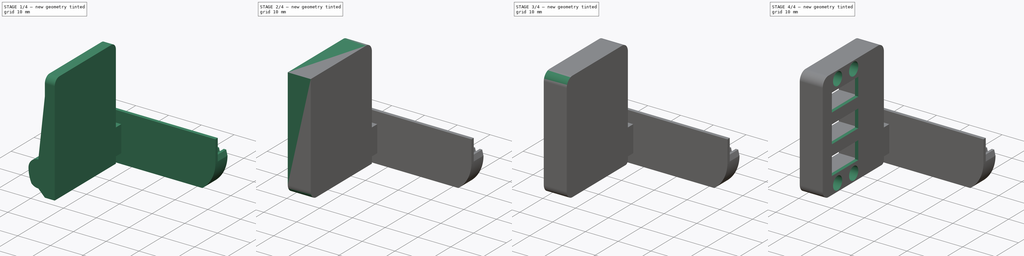
[diagram: build sequence overview — one tinted view per stage of 4, left to right]
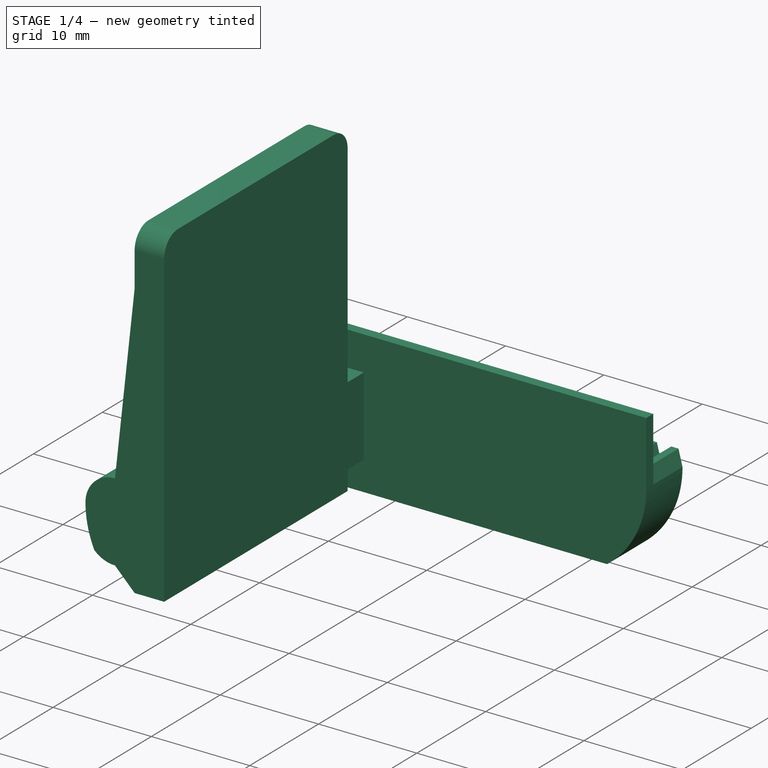
[diagram: stage 1 of 4 — iso view after this stage's code; geometry added in this stage tinted green]
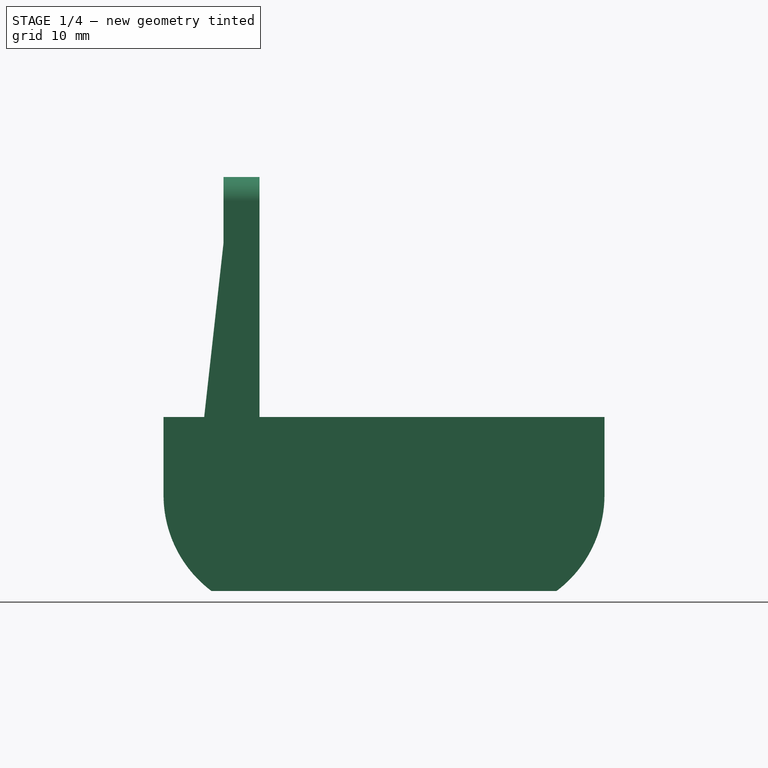
[diagram: stage 1 of 4 — front view after this stage's code; geometry added in this stage tinted green]
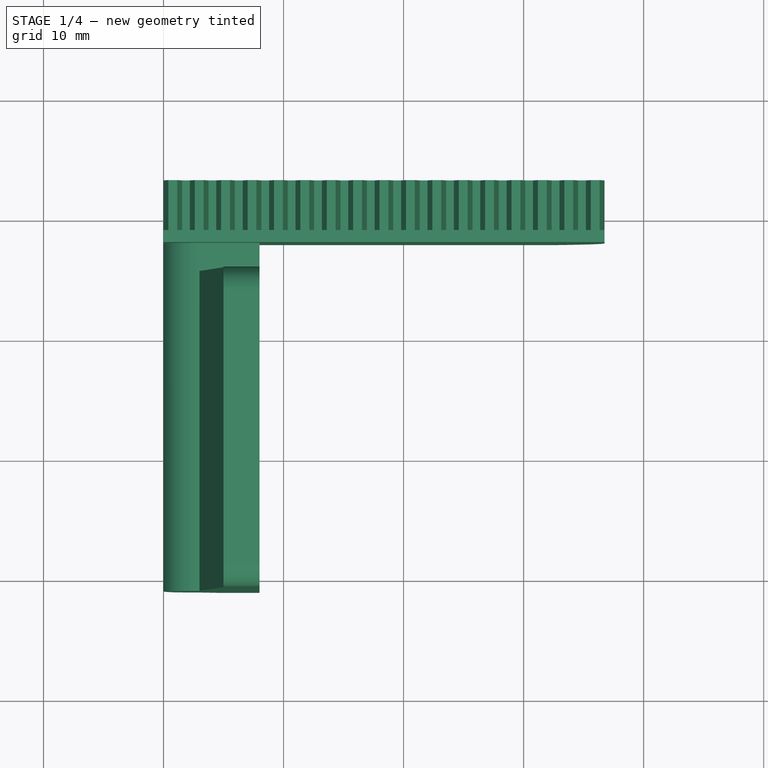
[diagram: stage 1 of 4 — top view after this stage's code; geometry added in this stage tinted green]
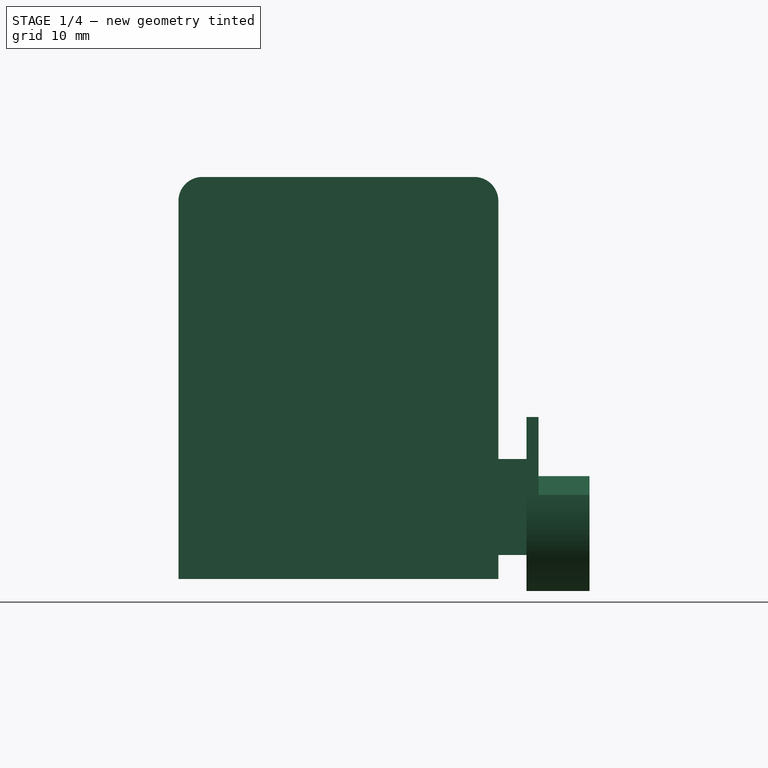
[diagram: stage 1 of 4 — right view after this stage's code; geometry added in this stage tinted green]
FCSTD DOCUMENT  (FreeCAD 0.21R33668 +26 (Git))
Label: Gripper_Right_1
License: All rights reserved
LicenseURL: https://en.wikipedia.org/wiki/All_rights_reserved
objects: Sketcher::SketchObject×9, PartDesign::Pocket×7, PartDesign::Fillet×4, PartDesign::Pad×2, Part::Feature×1, PartDesign::FeatureBase×1, PartDesign::Body×1
note: 38 computed .brp shape members not serialized (recipe doc carries the construction recipe); baked Part::Feature solids carry a one-line shape summary decoded from their .brp

FEATURE [Part::Feature] Part__Feature  label="gripper_finger v1"
  shape: bbox 36.74 x 44.25 x 34.5 mm, 95 faces (baked)
FEATURE [PartDesign::FeatureBase] BaseFeature
  BaseFeature = -> Part__Feature
FEATURE [Sketcher::SketchObject] Sketch
  ExternalGeometry = -> [BaseFeature]
  FullyConstrained = true
  MapMode = 5
  Placement = pos=(0,-31,0) rot=(0,0.707107,0.707107;3.14159rad)
  Support = -> [BaseFeature]
  sketch-geometry (9):
    g0: LineSegment StartX=-8 StartY=11 StartZ=0 EndX=-3 EndY=11 EndZ=0
    g1: LineSegment StartX=-3 StartY=11 StartZ=0 EndX=-5 EndY=9 EndZ=0
    g2: LineSegment StartX=-5 StartY=9 StartZ=0 EndX=-8 EndY=9 EndZ=0
    g3: LineSegment StartX=-8 StartY=9 StartZ=0 EndX=-8 EndY=11 EndZ=0
    g4: LineSegment StartX=-8 StartY=42.5 StartZ=0 EndX=-5 EndY=42.5 EndZ=0
    g5: LineSegment StartX=-5 StartY=42.5 StartZ=0 EndX=-5 EndY=37 EndZ=0
    g6: LineSegment StartX=-5 StartY=37 StartZ=0 EndX=-3 EndY=19 EndZ=0
    g7: LineSegment StartX=-3 StartY=19 StartZ=0 EndX=-8 EndY=19 EndZ=0
    g8: LineSegment StartX=-8 StartY=19 StartZ=0 EndX=-8 EndY=42.5 EndZ=0
  constraints (18):
    c: Coincident(g-10,g0)
    c: Coincident(g0,g-10)
    c: Coincident(g0,g1)
    c: Coincident(g1,g-8)
    c: Coincident(g1,g2)
    c: Coincident(g2,g-8)
    c: Coincident(g2,g3)
    c: Coincident(g3,g0)
    c: Coincident(g-5,g4)
    c: Coincident(g4,g-4)
    c: Coincident(g4,g5)
    c: Coincident(g5,g-6)
    c: Coincident(g5,g6)
    c: Coincident(g6,g-6)
    c: Coincident(g6,g7)
    c: Coincident(g7,g-5)
    c: Coincident(g7,g8)
    c: Coincident(g8,g4)
FEATURE [PartDesign::Pad] Pad
  BaseFeature = -> BaseFeature
  Direction = (0,1,-2e-16)
  Length = 6.65
  Length2 = 10
  Profile = -> Sketch
  ReferenceAxis = -> Sketch [N_Axis]
  Type = 0
FEATURE [Sketcher::SketchObject] Sketch001
  ExternalGeometry = -> [Pad]
  FullyConstrained = false
  MapMode = 5
  Placement = pos=(8,0,0) rot=(0.57735,0.57735,0.57735;2.0944rad)
  Support = -> [Pad]
  sketch-geometry (4):
    g0: LineSegment StartX=-66.622 StartY=49.9911 StartZ=0 EndX=-51 EndY=49.9911 EndZ=0
    g1: LineSegment StartX=-51 StartY=49.9911 StartZ=0 EndX=-51 EndY=-4.70085 EndZ=0
    g2: LineSegment StartX=-51 StartY=-4.70085 StartZ=0 EndX=-66.622 EndY=-4.70085 EndZ=0
    g3: LineSegment StartX=-66.622 StartY=-4.70085 StartZ=0 EndX=-66.622 EndY=49.9911 EndZ=0
  constraints (9):
    c: Coincident(g0,g1)
    c: Coincident(g1,g2)
    c: Coincident(g2,g3)
    c: Coincident(g3,g0)
    c: Horizontal(g0)
    c: Horizontal(g2)
    c: Vertical(g1)
    c: Vertical(g3)
    c: DistanceX(g-3,g0) = 10
FEATURE [PartDesign::Pocket] Pocket
  BaseFeature = -> Pad
  Direction = (-1,0,0)
  Length = 5
  Length2 = 5
  Profile = -> Sketch001
  ReferenceAxis = -> Sketch001 [N_Axis]
  Type = 1
FEATURE [PartDesign::Fillet] Fillet
  Base = -> Pocket [Edge142,Edge20]
  BaseFeature = -> Pocket
  Radius = 2
  SupportTransform = false
  UseAllEdges = false
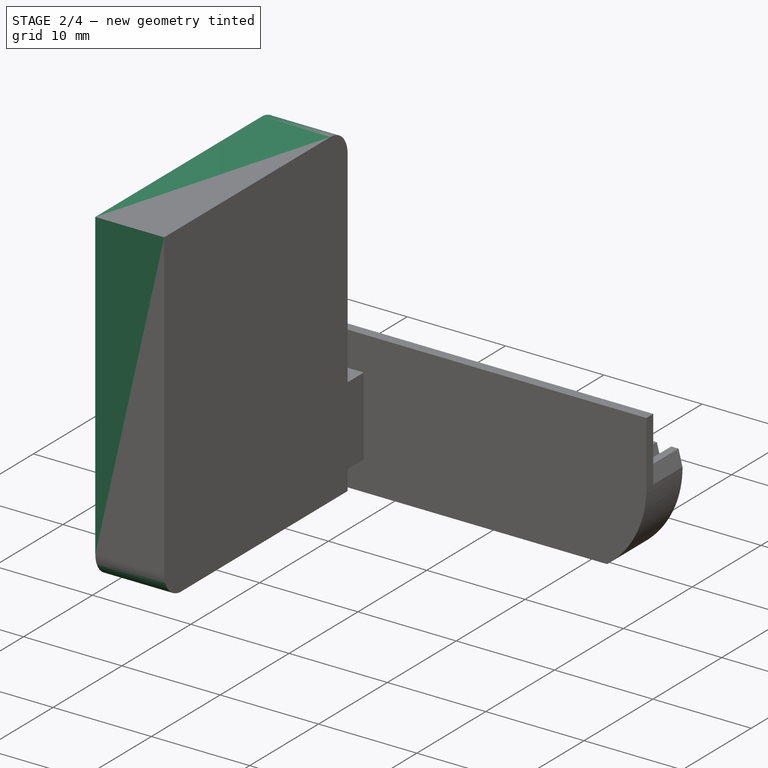
[diagram: stage 2 of 4 — iso view after this stage's code; geometry added in this stage tinted green]
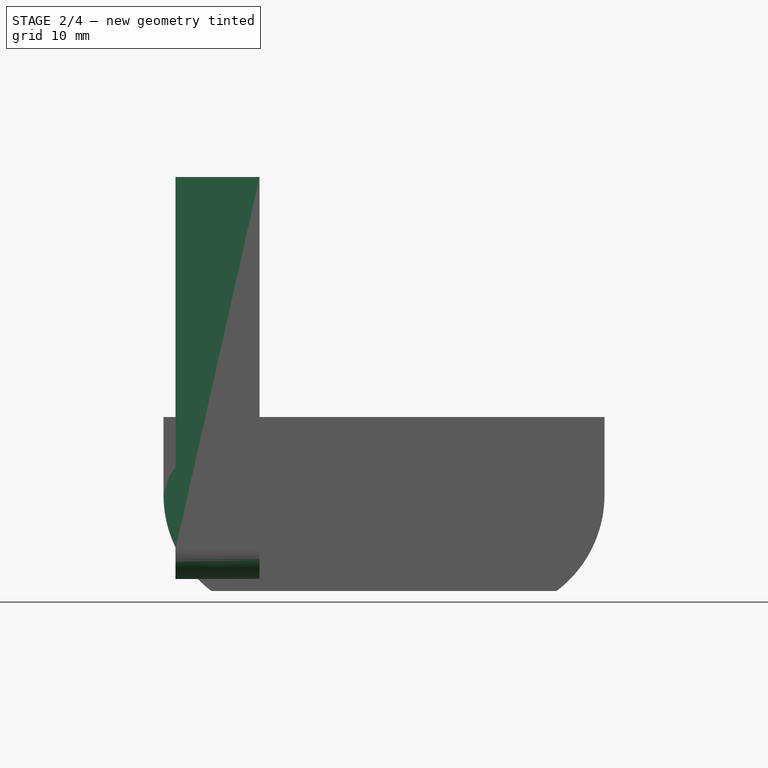
[diagram: stage 2 of 4 — front view after this stage's code; geometry added in this stage tinted green]
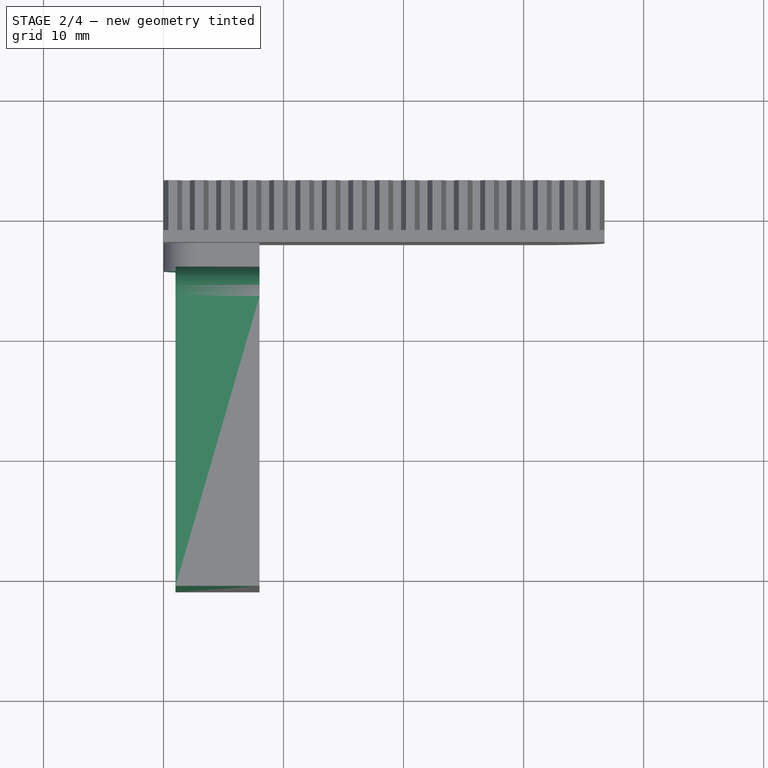
[diagram: stage 2 of 4 — top view after this stage's code; geometry added in this stage tinted green]
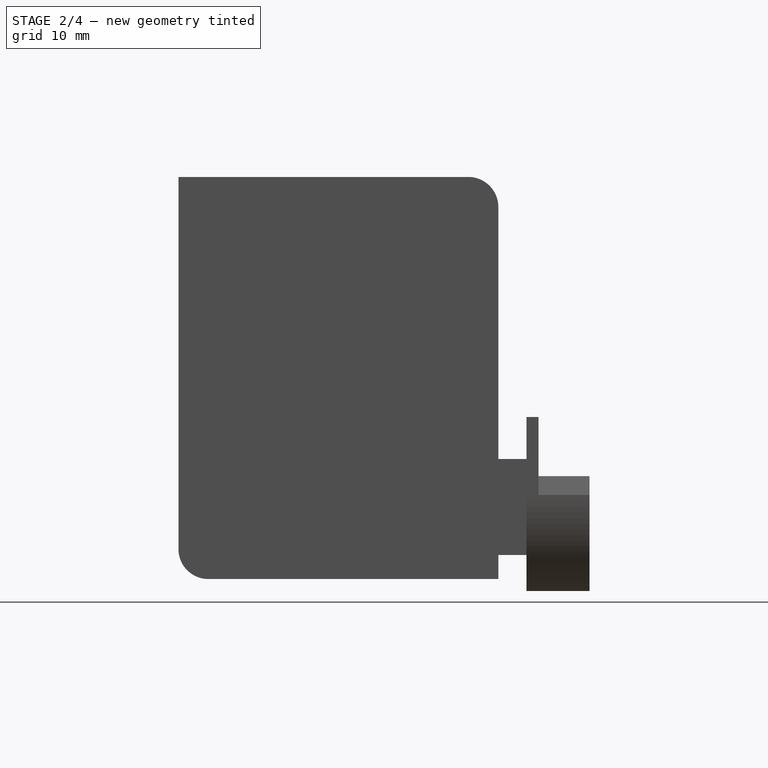
[diagram: stage 2 of 4 — right view after this stage's code; geometry added in this stage tinted green]
FEATURE [Sketcher::SketchObject] Sketch002
  ExternalGeometry = -> [Fillet]
  FullyConstrained = false
  MapMode = 5
  Placement = pos=(8,0,0) rot=(0.57735,0.57735,0.57735;2.0944rad)
  Support = -> [Fillet]
  sketch-geometry (4):
    g0: LineSegment StartX=-60.4604 StartY=48.2021 StartZ=0 EndX=-24.35 EndY=48.2021 EndZ=0
    g1: LineSegment StartX=-24.35 StartY=48.2021 StartZ=0 EndX=-24.35 EndY=1.81689 EndZ=0
    g2: LineSegment StartX=-24.35 StartY=1.81689 StartZ=0 EndX=-60.4604 EndY=1.81689 EndZ=0
    g3: LineSegment StartX=-60.4604 StartY=1.81689 StartZ=0 EndX=-60.4604 EndY=48.2021 EndZ=0
  constraints (12):
    c: DistanceY(g-3,g-4) = 23.5
    c: DistanceY(g-5,g-6) = 2
    c: DistanceX(g-7,g-3) = 26.65
    c: Coincident(g0,g1)
    c: Coincident(g1,g2)
    c: Coincident(g2,g3)
    c: Coincident(g3,g0)
    c: Horizontal(g0)
    c: Horizontal(g2)
    c: Vertical(g1)
    c: Vertical(g3)
    c: Vertical(g0,g-3)
FEATURE [PartDesign::Pocket] Pocket001
  BaseFeature = -> Fillet
  Direction = (-1,0,0)
  Length = 5
  Length2 = 5
  Profile = -> Sketch002
  ReferenceAxis = -> Sketch002 [N_Axis]
  Type = 1
FEATURE [Sketcher::SketchObject] Sketch003
  ExternalGeometry = -> [Pocket001]
  FullyConstrained = true
  MapMode = 5
  Placement = pos=(8,0,0) rot=(0.57735,0.57735,0.57735;2.0944rad)
  Support = -> [Pocket001]
  sketch-geometry (4):
    g0: LineSegment StartX=-51 StartY=42.5 StartZ=0 EndX=-24.35 EndY=42.5 EndZ=0
    g1: LineSegment StartX=-24.35 StartY=42.5 StartZ=0 EndX=-24.35 EndY=9 EndZ=0
    g2: LineSegment StartX=-24.35 StartY=9 StartZ=0 EndX=-51 EndY=9 EndZ=0
    g3: LineSegment StartX=-51 StartY=9 StartZ=0 EndX=-51 EndY=42.5 EndZ=0
  constraints (12):
    c: Coincident(g0,g1)
    c: Coincident(g1,g2)
    c: Coincident(g2,g3)
    c: Coincident(g3,g0)
    c: Horizontal(g0)
    c: Horizontal(g2)
    c: Vertical(g1)
    c: Vertical(g3)
    c: DistanceX(g-3,g0) = 0
    c: DistanceY(g1,g-5) = 2
    c: DistanceY(g-4,g0) = 23.5
    c: DistanceX(g0,g-4) = 26.65
FEATURE [PartDesign::Pad] Pad001
  BaseFeature = -> Pocket001
  Direction = (1,0,0)
  Length = 7
  Length2 = 10
  Profile = -> Sketch003
  ReferenceAxis = -> Sketch003 [N_Axis]
  Reversed = true
  Type = 0
FEATURE [PartDesign::Fillet] Fillet001
  Base = -> Pad001 [Edge25,Edge32]
  BaseFeature = -> Pad001
  Radius = 2.5
  SupportTransform = false
  UseAllEdges = false
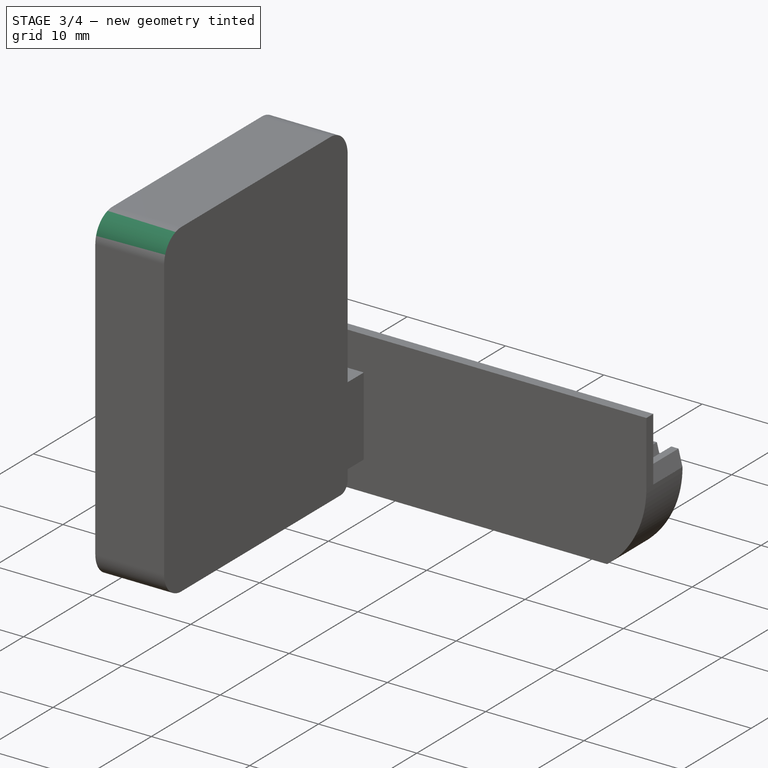
[diagram: stage 3 of 4 — iso view after this stage's code; geometry added in this stage tinted green]
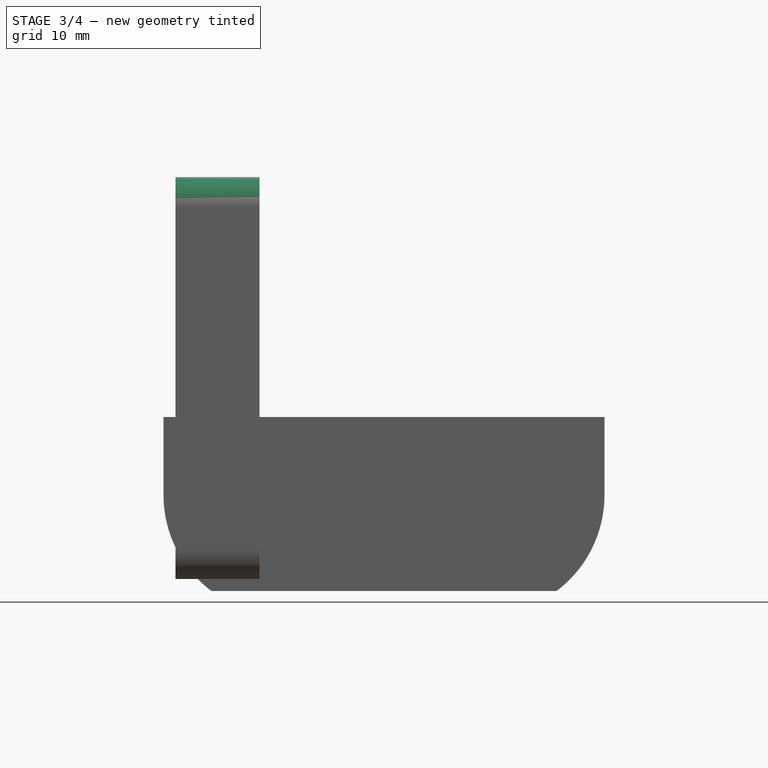
[diagram: stage 3 of 4 — front view after this stage's code; geometry added in this stage tinted green]
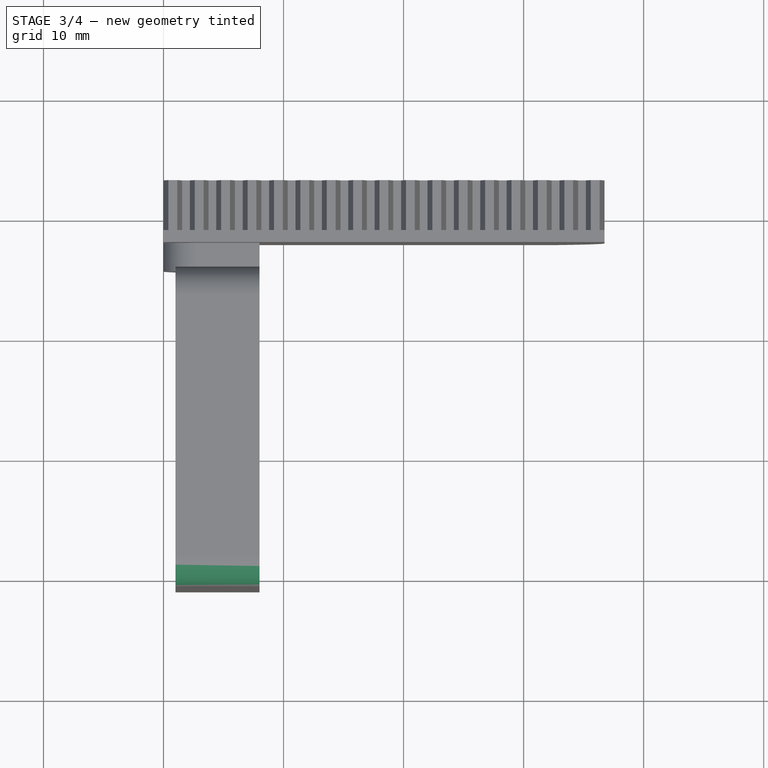
[diagram: stage 3 of 4 — top view after this stage's code; geometry added in this stage tinted green]
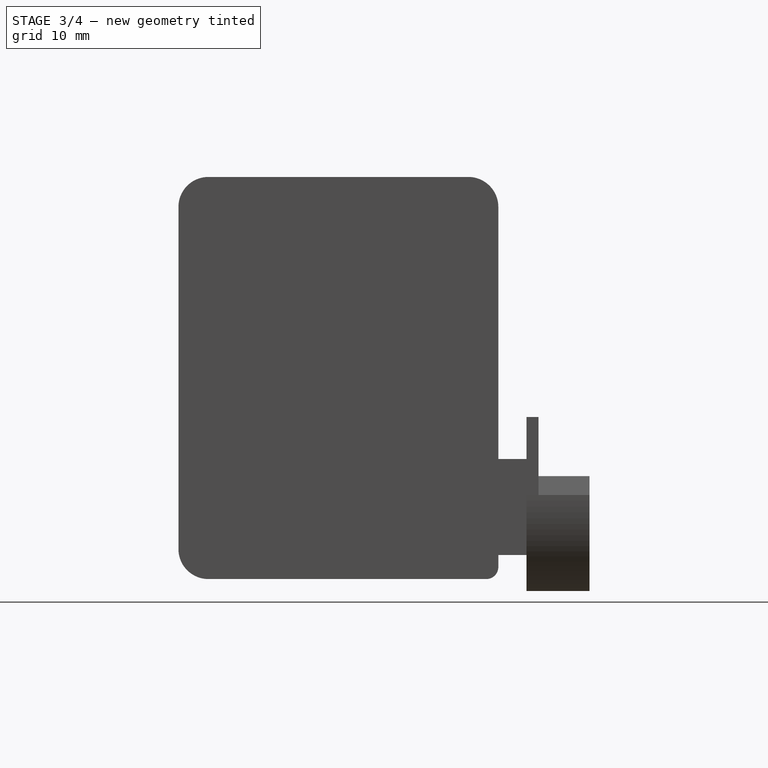
[diagram: stage 3 of 4 — right view after this stage's code; geometry added in this stage tinted green]
FEATURE [PartDesign::Fillet] Fillet002
  Base = -> Fillet001 [Edge24]
  BaseFeature = -> Fillet001
  Radius = 1
  SupportTransform = false
  UseAllEdges = false
FEATURE [PartDesign::Fillet] Fillet003
  Base = -> Fillet002 [Edge20]
  BaseFeature = -> Fillet002
  Radius = 2.5
  SupportTransform = false
  UseAllEdges = false
FEATURE [Sketcher::SketchObject] Sketch004
  ExternalGeometry = -> [Fillet003]
  FullyConstrained = true
  MapMode = 5
  Placement = pos=(1,0,0) rot=(0.57735,-0.57735,-0.57735;2.0944rad)
  Support = -> [Fillet003]
  sketch-geometry (12):
    g0: LineSegment StartX=34 StartY=20.25 StartZ=0 EndX=48 EndY=20.25 EndZ=0
    g1: LineSegment StartX=48 StartY=20.25 StartZ=0 EndX=48 EndY=13.75 EndZ=0
    g2: LineSegment StartX=48 StartY=13.75 StartZ=0 EndX=34 EndY=13.75 EndZ=0
    g3: LineSegment StartX=34 StartY=13.75 StartZ=0 EndX=34 EndY=20.25 EndZ=0
    g4: LineSegment StartX=34 StartY=29 StartZ=0 EndX=48 EndY=29 EndZ=0
    g5: LineSegment StartX=48 StartY=29 StartZ=0 EndX=48 EndY=22.5 EndZ=0
    g6: LineSegment StartX=48 StartY=22.5 StartZ=0 EndX=34 EndY=22.5 EndZ=0
    g7: LineSegment StartX=34 StartY=22.5 StartZ=0 EndX=34 EndY=29 EndZ=0
    g8: LineSegment StartX=34 StartY=37.75 StartZ=0 EndX=48 EndY=37.75 EndZ=0
    g9: LineSegment StartX=48 StartY=37.75 StartZ=0 EndX=48 EndY=31.25 EndZ=0
    g10: LineSegment StartX=48 StartY=31.25 StartZ=0 EndX=34 EndY=31.25 EndZ=0
    g11: LineSegment StartX=34 StartY=31.25 StartZ=0 EndX=34 EndY=37.75 EndZ=0
  constraints (38):
    c: Coincident(g0,g1)
    c: Coincident(g1,g2)
    c: Coincident(g2,g3)
    c: Coincident(g3,g0)
    c: DistanceY(g1,g1) = 6.5
    c: DistanceX(g0,g0) = 14
    c: DistanceX(g-3,g-4) = 26.65
    c: DistanceX(g1,g-4) = 3
    c: Coincident(g4,g5)
    c: Coincident(g5,g6)
    c: Coincident(g6,g7)
    c: Coincident(g7,g4)
    c: Vertical(g5)
    c: Coincident(g8,g9)
    c: Coincident(g9,g10)
    c: Coincident(g10,g11)
    c: Coincident(g11,g8)
    c: Vertical(g9)
    c: DistanceY(g-4,g-4) = 28.5
    c: Equal(g9,g5)
    c: Equal(g5,g1)
    c: DistanceY(g8,g-4) = 2.25
    c: DistanceY(g0,g5) = 2.25
    c: DistanceY(g-4,g1) = 2.25
    c: DistanceY(g4,g9) = 2.25
    c: Vertical(g2,g0)
    c: Horizontal(g0,g0)
    c: Horizontal(g2,g1)
    c: Vertical(g5,g0)
    c: Vertical(g9,g4)
    c: Vertical(g10,g4)
    c: Vertical(g6,g0)
    c: Vertical(g4,g6)
    c: Vertical(g8,g10)
    c: Horizontal(g8,g8)
    c: Horizontal(g10,g9)
    c: Horizontal(g4,g4)
    c: Horizontal(g6,g5)
FEATURE [PartDesign::Pocket] Pocket002
  BaseFeature = -> Fillet003
  Direction = (1,0,0)
  Length = 6
  Length2 = 5
  Profile = -> Sketch004
  ReferenceAxis = -> Sketch004 [N_Axis]
  Type = 0
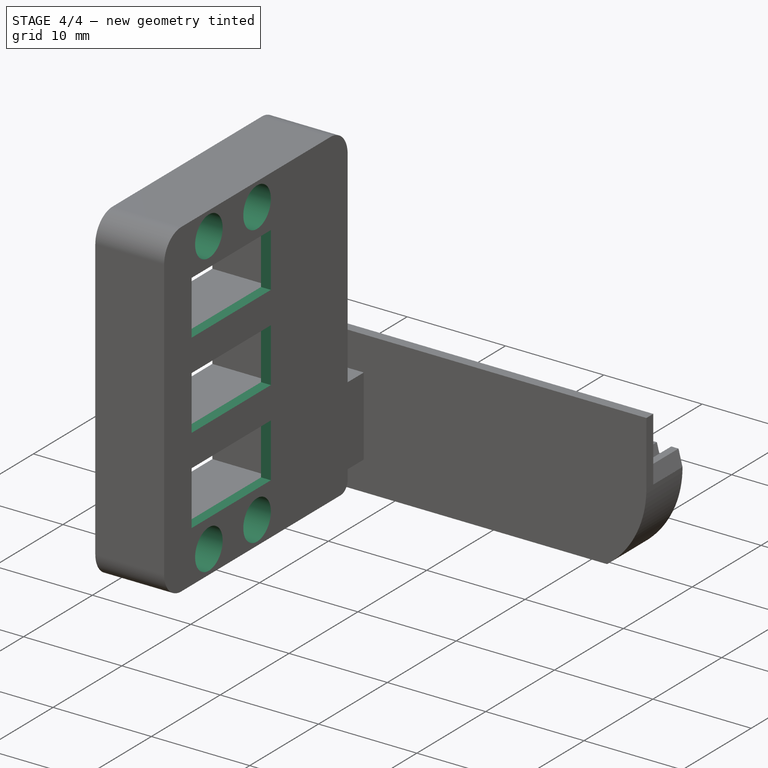
[diagram: stage 4 of 4 — iso view after this stage's code; geometry added in this stage tinted green]
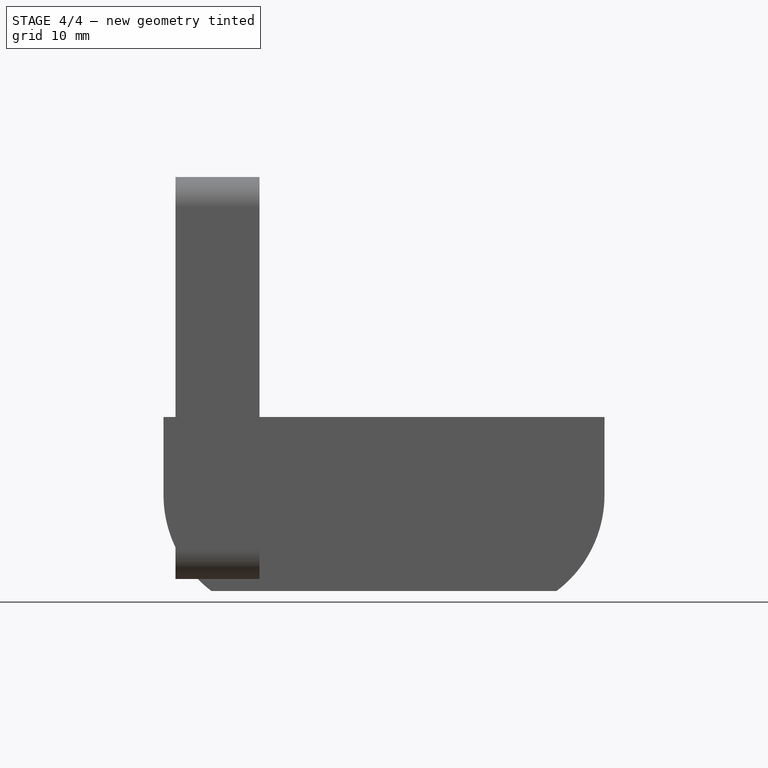
[diagram: stage 4 of 4 — front view after this stage's code; geometry added in this stage tinted green]
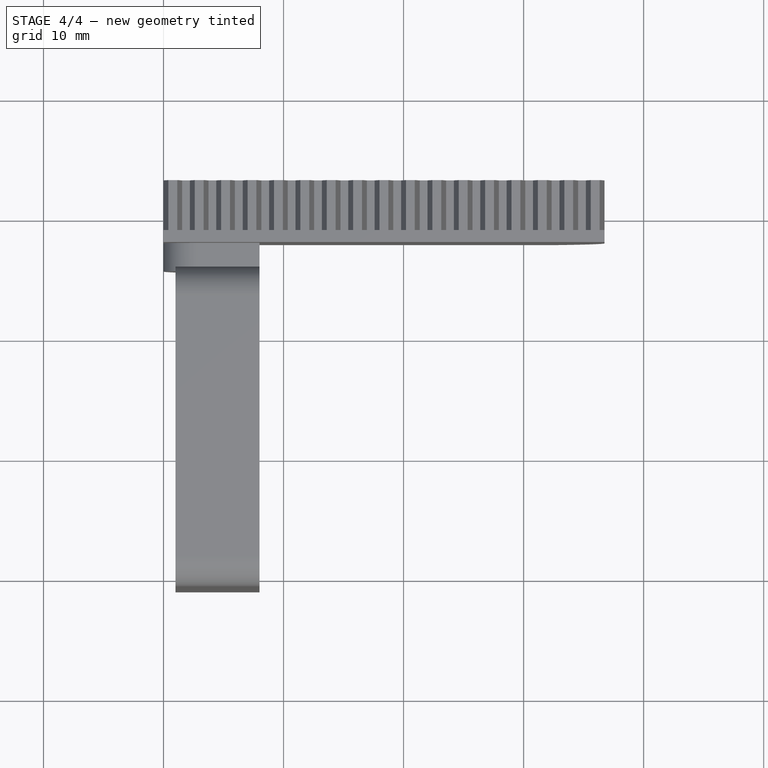
[diagram: stage 4 of 4 — top view after this stage's code; geometry added in this stage tinted green]
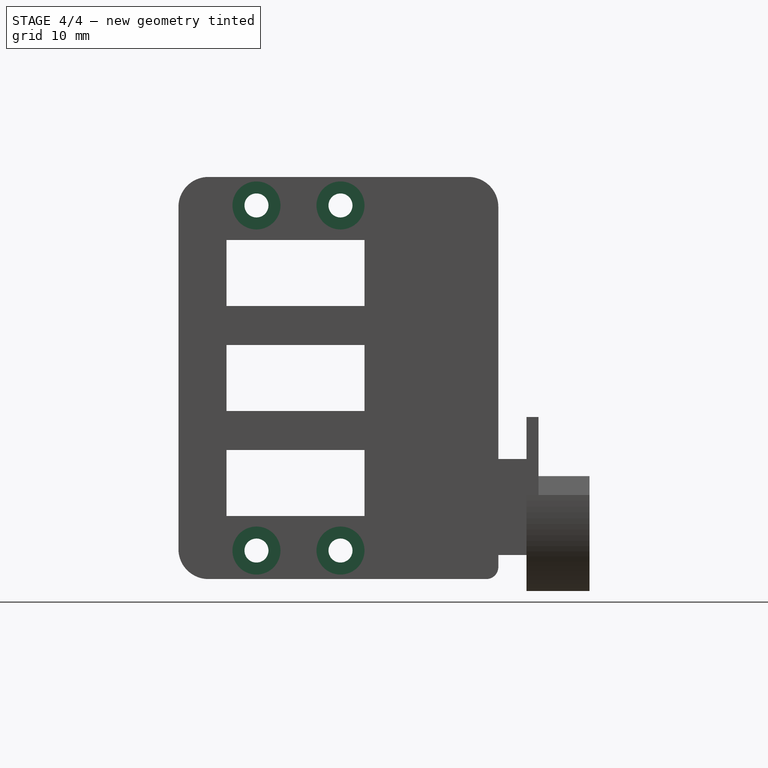
[diagram: stage 4 of 4 — right view after this stage's code; geometry added in this stage tinted green]
FEATURE [Sketcher::SketchObject] Sketch005
  ExternalGeometry = -> [Pocket002]
  FullyConstrained = true
  MapMode = 5
  Placement = pos=(7,0,0) rot=(0.57735,-0.57735,-0.57735;2.0944rad)
  Support = -> [Pocket002]
  sketch-geometry (12):
    g0: LineSegment StartX=35.5 StartY=37.25 StartZ=0 EndX=47 EndY=37.25 EndZ=0
    g1: LineSegment StartX=47 StartY=37.25 StartZ=0 EndX=47 EndY=31.75 EndZ=0
    g2: LineSegment StartX=47 StartY=31.75 StartZ=0 EndX=35.5 EndY=31.75 EndZ=0
    g3: LineSegment StartX=35.5 StartY=31.75 StartZ=0 EndX=35.5 EndY=37.25 EndZ=0
    g4: LineSegment StartX=35.5 StartY=28.5 StartZ=0 EndX=47 EndY=28.5 EndZ=0
    g5: LineSegment StartX=47 StartY=28.5 StartZ=0 EndX=47 EndY=23 EndZ=0
    g6: LineSegment StartX=47 StartY=23 StartZ=0 EndX=35.5 EndY=23 EndZ=0
    g7: LineSegment StartX=35.5 StartY=23 StartZ=0 EndX=35.5 EndY=28.5 EndZ=0
    g8: LineSegment StartX=35.5 StartY=19.75 StartZ=0 EndX=47 EndY=19.75 EndZ=0
    g9: LineSegment StartX=47 StartY=19.75 StartZ=0 EndX=47 EndY=14.25 EndZ=0
    g10: LineSegment StartX=47 StartY=14.25 StartZ=0 EndX=35.5 EndY=14.25 EndZ=0
    g11: LineSegment StartX=35.5 StartY=14.25 StartZ=0 EndX=35.5 EndY=19.75 EndZ=0
  constraints (37):
    c: Coincident(g0,g1)
    c: Coincident(g1,g2)
    c: Coincident(g2,g3)
    c: Coincident(g3,g0)
    c: Horizontal(g0)
    c: Horizontal(g2)
    c: Vertical(g1)
    c: Vertical(g3)
    c: Coincident(g4,g5)
    c: Coincident(g5,g6)
    c: Coincident(g6,g7)
    c: Coincident(g7,g4)
    c: Horizontal(g4)
    c: Horizontal(g6)
    c: Vertical(g5)
    c: Vertical(g7)
    c: Coincident(g8,g9)
    c: Coincident(g9,g10)
    c: Coincident(g10,g11)
    c: Coincident(g11,g8)
    c: Horizontal(g8)
    c: Horizontal(g10)
    c: Vertical(g9)
    c: Vertical(g11)
    c: Vertical(g0,g4)
    c: Vertical(g8,g6)
    c: Vertical(g4,g1)
    c: Vertical(g8,g5)
    c: DistanceX(g0,g-3) = 1
    c: DistanceX(g-4,g0) = 1.5
    c: DistanceY(g0,g-3) = 0.5
    c: Equal(g1,g5)
    c: Equal(g9,g5)
    c: DistanceY(g-8,g-8) = 6.5
    c: DistanceY(g-9,g1) = 0.5
    c: DistanceY(g4,g-10) = 0.5
    c: DistanceY(g8,g-11) = 0.5
FEATURE [PartDesign::Pocket] Pocket003
  BaseFeature = -> Pocket002
  Direction = (1,0,0)
  Length = 5
  Length2 = 5
  Profile = -> Sketch005
  ReferenceAxis = -> Sketch005 [N_Axis]
  Type = 1
FEATURE [Sketcher::SketchObject] Sketch006
  ExternalGeometry = -> [Pocket003]
  FullyConstrained = true
  MapMode = 5
  Placement = pos=(1,0,0) rot=(0.57735,-0.57735,-0.57735;2.0944rad)
  Support = -> [Pocket003]
  sketch-geometry (4):
    g0: Circle CenterX=37.5 CenterY=40.125 CenterZ=0 NormalX=0 NormalY=0 NormalZ=1 AngleXU=0 Radius=1
    g1: Circle CenterX=44.5 CenterY=40.125 CenterZ=0 NormalX=0 NormalY=0 NormalZ=1 AngleXU=0 Radius=1
    g2: Circle CenterX=37.5 CenterY=11.375 CenterZ=0 NormalX=0 NormalY=0 NormalZ=1 AngleXU=0 Radius=1
    g3: Circle CenterX=44.5 CenterY=11.375 CenterZ=0 NormalX=0 NormalY=0 NormalZ=1 AngleXU=0 Radius=1
  constraints (15):
    c: Diameter(g3) = 2
    c: Equal(g2,g3)
    c: Equal(g3,g1)
    c: Equal(g1,g0)
    c: Vertical(g0,g2)
    c: Vertical(g1,g3)
    c: DistanceX(g0,g1) = 7
    c: DistanceX(g-3,g0) = 3.5
    c: DistanceX(g1,g-4) = 3.5
    c: DistanceY(g-3,g-5) = 4.75
    c: DistanceY(g-3,g0) = 2.375
    c: Horizontal(g0,g1)
    c: Horizontal(g2,g3)
    c: DistanceY(g-6,g2) = 2.375
    c: DistanceY(g-8,g-5) = 4.75
FEATURE [PartDesign::Pocket] Pocket004
  BaseFeature = -> Pocket003
  Direction = (1,0,0)
  Length = 5
  Length2 = 5
  Profile = -> Sketch006
  ReferenceAxis = -> Sketch006 [N_Axis]
  Type = 1
FEATURE [Sketcher::SketchObject] Sketch007
  ExternalGeometry = -> [Pocket004]
  FullyConstrained = true
  MapMode = 5
  Placement = pos=(8,0,0) rot=(0.57735,0.57735,0.57735;2.0944rad)
  Support = -> [Pocket004]
  sketch-geometry (4):
    g0: Circle CenterX=-44.5 CenterY=40.125 CenterZ=0 NormalX=0 NormalY=0 NormalZ=1 AngleXU=0 Radius=2
    g1: Circle CenterX=-37.5 CenterY=40.125 CenterZ=0 NormalX=0 NormalY=0 NormalZ=1 AngleXU=0 Radius=2
    g2: Circle CenterX=-44.5 CenterY=11.375 CenterZ=0 NormalX=0 NormalY=0 NormalZ=1 AngleXU=0 Radius=2
    g3: Circle CenterX=-37.5 CenterY=11.375 CenterZ=0 NormalX=0 NormalY=0 NormalZ=1 AngleXU=0 Radius=2
  constraints (8):
    c: Coincident(g0,g-4)
    c: Coincident(g1,g-3)
    c: Coincident(g2,g-5)
    c: Coincident(g3,g-6)
    c: Diameter(g1) = 4
    c: Equal(g0,g1)
    c: Equal(g2,g0)
    c: Equal(g2,g3)
FEATURE [PartDesign::Pocket] Pocket005
  BaseFeature = -> Pocket004
  Direction = (-1,0,0)
  Length = 3
  Length2 = 5
  Profile = -> Sketch007
  ReferenceAxis = -> Sketch007 [N_Axis]
  Type = 0
FEATURE [Sketcher::SketchObject] Sketch008
  ExternalGeometry = -> [Sketch006,Pocket005]
  FullyConstrained = true
  MapMode = 5
  Placement = pos=(1,0,0) rot=(0.57735,-0.57735,-0.57735;2.0944rad)
  Support = -> [Pocket005]
  sketch-geometry (4):
    g0: Circle CenterX=37.5 CenterY=11.375 CenterZ=0 NormalX=0 NormalY=0 NormalZ=1 AngleXU=0 Radius=2
    g1: Circle CenterX=44.5 CenterY=11.375 CenterZ=0 NormalX=0 NormalY=0 NormalZ=1 AngleXU=0 Radius=2
    g2: Circle CenterX=44.5 CenterY=40.125 CenterZ=0 NormalX=0 NormalY=0 NormalZ=1 AngleXU=0 Radius=2
    g3: Circle CenterX=37.5 CenterY=40.125 CenterZ=0 NormalX=0 NormalY=0 NormalZ=1 AngleXU=0 Radius=2
  constraints (14):
    c: Coincident(g0,g-6)
    c: Coincident(g1,g-5)
    c: Coincident(g2,g-4)
    c: Coincident(g3,g-3)
    c: Diameter(g2) = 4
    c: Equal(g2,g3)
    c: Equal(g1,g2)
    c: Equal(g0,g3)
    c: DistanceY(g-8,g-7) = 33.5
    c: DistanceY(g0,g3) = 28.75
    c: DistanceY(g-9,g-7) = 4.75
    c: DistanceY(g-8,g-10) = 4.75
    c: DistanceY(g-12,g-11) = 2.25
    c: DistanceY(g-13,g-13) = 6.5
FEATURE [PartDesign::Pocket] Pocket006
  BaseFeature = -> Pocket005
  Direction = (1,0,0)
  Length = 2
  Length2 = 5
  Profile = -> Sketch008
  ReferenceAxis = -> Sketch008 [N_Axis]
  Type = 0
FEATURE [PartDesign::Body] Body
  BaseFeature = -> Part__Feature
  Group = -> [BaseFeature,Sketch,Pad,Sketch001,Pocket,Fillet,Sketch002,Pocket001,Sketch003,Pad001,Fillet001,Fillet002,Fillet003,Sketch004,Pocket002,Sketch005,Pocket003,Sketch006,Pocket004,Sketch007,Pocket005,Sketch008,Pocket006]
  Origin = -> Origin
  Tip = -> Pocket006
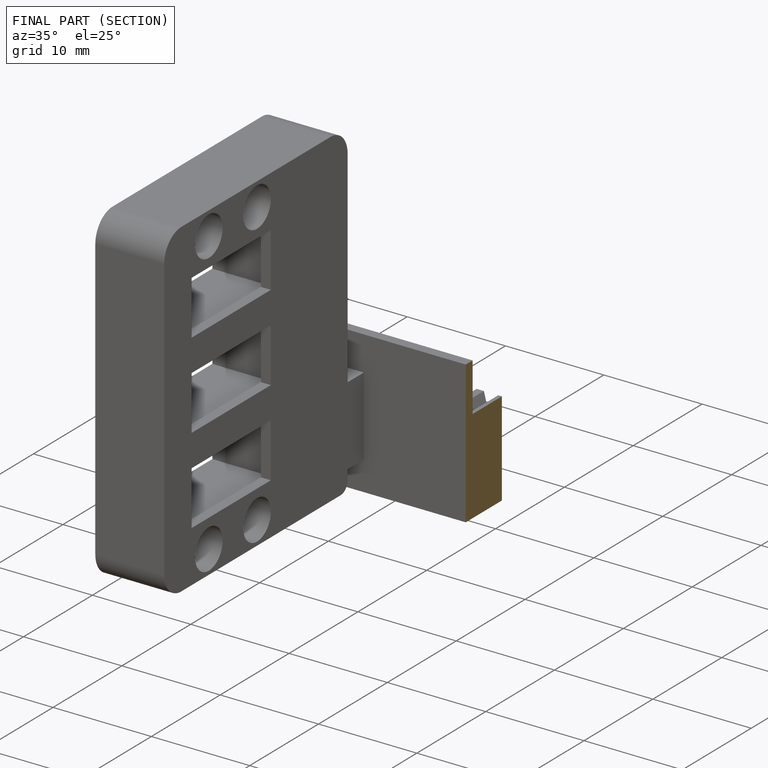
[diagram: finished part — half-section view (interior)]
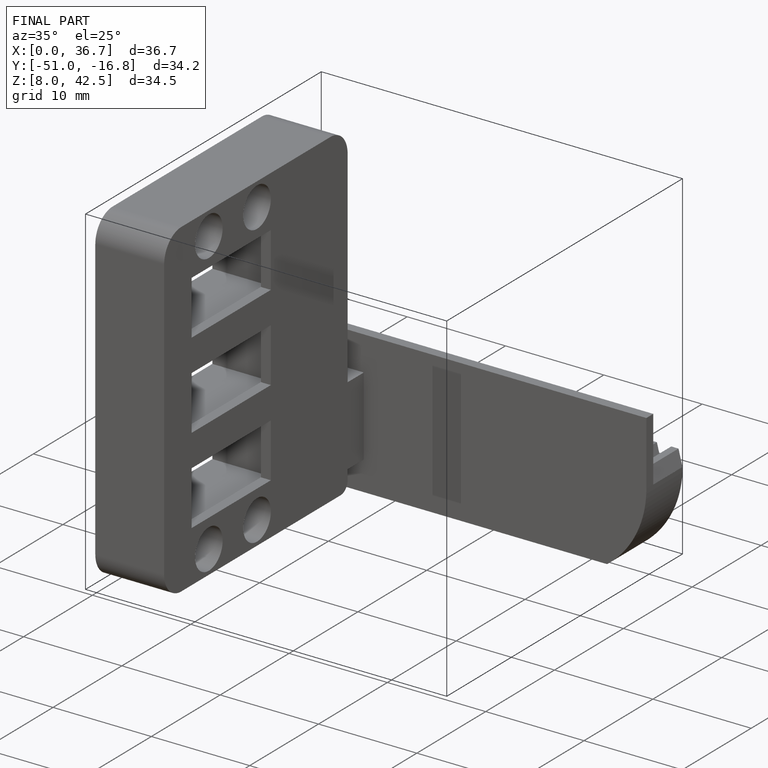
[diagram: finished part — iso view with bounding-box wireframe]
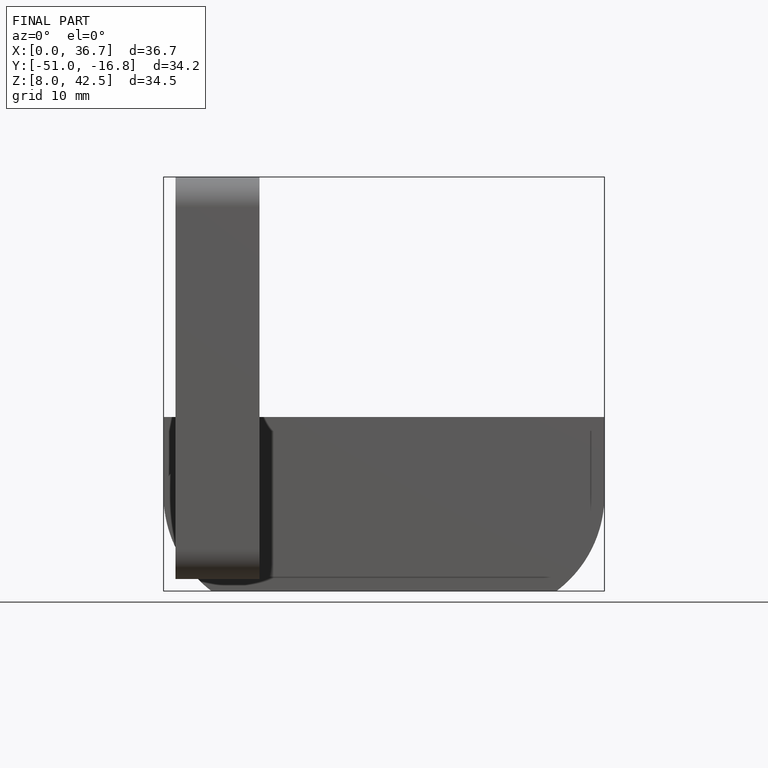
[diagram: finished part — front view with bounding-box wireframe]
